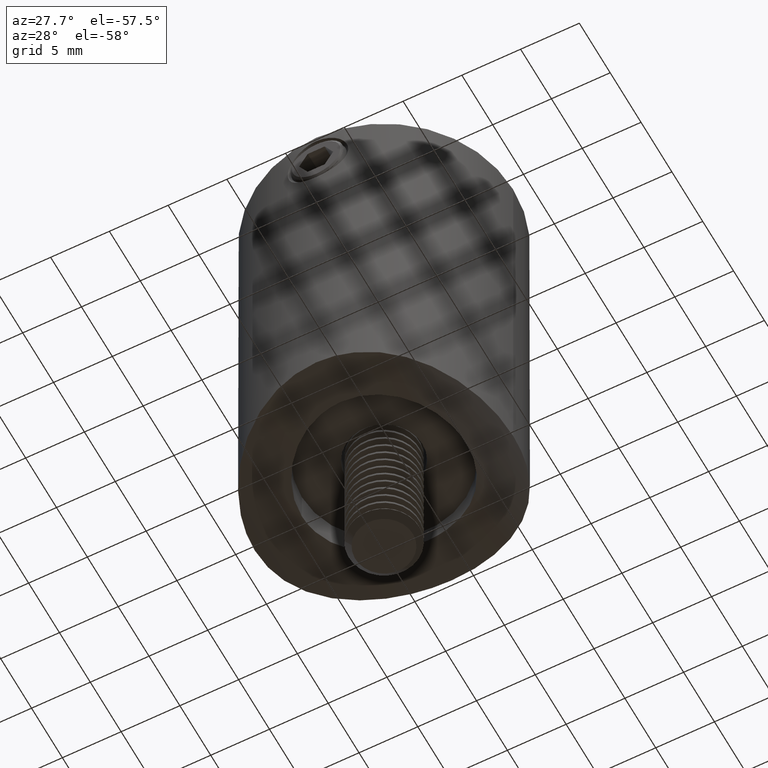
[diagram: clean part render]
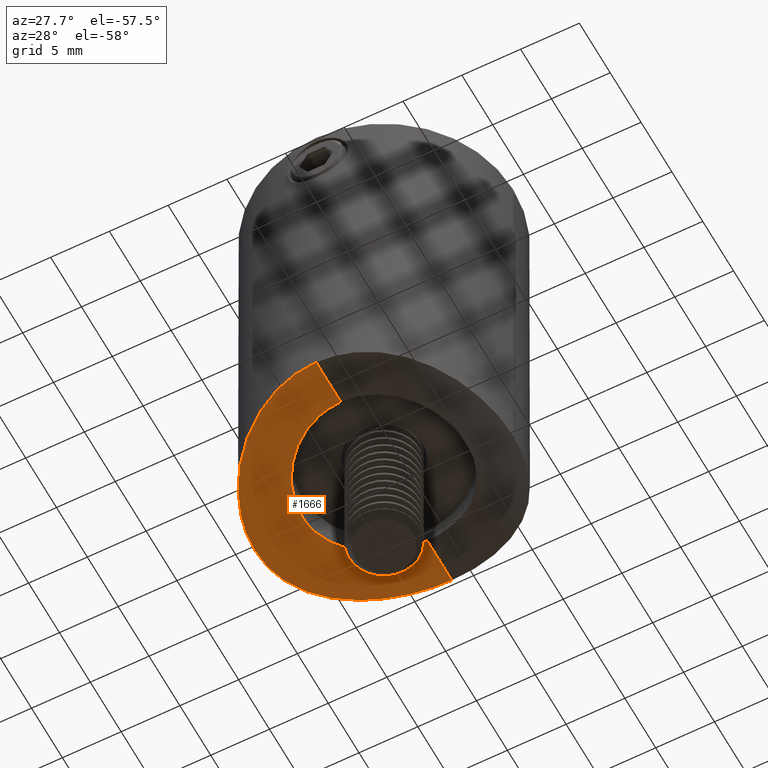
[diagram: same view with one face highlighted and labeled with its STEP entity id]
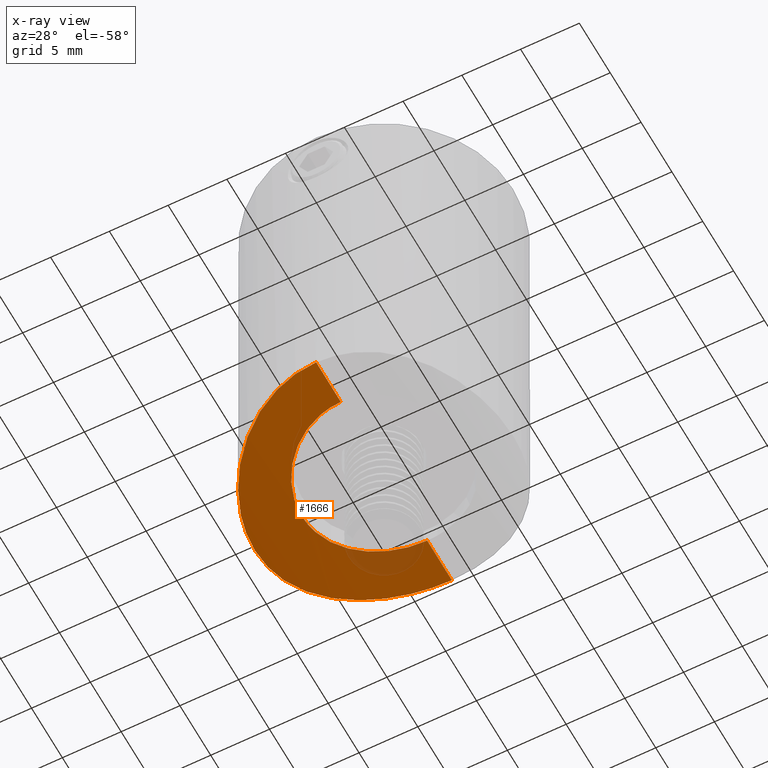
[diagram: x-ray of the same camera — body ghosted, the highlighted face saturated]
A machine part, auxiliary view. The second image highlights one B-rep face of the part: STEP entity #1666.
The next image is the same camera in x-ray: the body ghosted, the highlighted face saturated — about 8% of this face is hidden behind the body in this view.
In plain terms, the highlighted cylindrical surface (partial cylindrical patch) has radius 21.2 mm, axis along (0, 1, 0).
Its self-contained STEP definition (entity closure, byte-faithful):
#61 = CARTESIAN_POINT ( 'NONE',  ( -2.902241123111199084, -10.63519303795539805, -0.1873413325732195267 ) ) ;
#334 = CARTESIAN_POINT ( 'NONE',  ( -6.549707608988703633, 2.480681616731134742, -1.036917832098772418 ) ) ;
#373 = CARTESIAN_POINT ( 'NONE',  ( -6.999999999999999112, -2.621968049083548575E-16, -1.189003023337392939 ) ) ;
#392 = VERTEX_POINT ( 'NONE', #1781 ) ;
#426 = CARTESIAN_POINT ( 'NONE',  ( 1.225628972398258190E-13, 7.000000000001502798, 4.973675177510444196E-13 ) ) ;
#506 = CARTESIAN_POINT ( 'NONE',  ( -6.069757924312860986, -3.516592431719292922, -0.8857725263947305860 ) ) ;
#608 = VERTEX_POINT ( 'NONE', #13135 ) ;
#727 = CARTESIAN_POINT ( 'NONE',  ( -5.549761913631879651, 9.504206566031315973, -0.7366893261765361522 ) ) ;
#859 = EDGE_CURVE ( 'NONE', #392, #8025, #19038, .T. ) ;
#1018 = VECTOR ( 'NONE', #6494, 1000.000000000000000 ) ;
#1027 = EDGE_CURVE ( 'NONE', #18138, #8025, #18565, .T. ) ;
#1628 = CARTESIAN_POINT ( 'NONE',  ( -3.596189103304733958, -10.42094924135898992, -0.2960386154706161621 ) ) ;
#1666 = ADVANCED_FACE ( 'NONE', ( #13847 ), #2474, .F. ) ;
#1781 = CARTESIAN_POINT ( 'NONE',  ( -5.327213389923195931E-16, -10.99999999999999645, -1.146056980037272180E-15 ) ) ;
#1789 = CARTESIAN_POINT ( 'NONE',  ( -5.564252761578065254, 4.271566623904684334, -0.7415444747053617780 ) ) ;
#1954 = CARTESIAN_POINT ( 'NONE',  ( -5.688668117734375862, -4.085480503431443644, -0.7770593492622396292 ) ) ;
#2025 = CARTESIAN_POINT ( 'NONE',  ( -5.260839017932542383, -4.623392061158397404, -0.6625683936234562088 ) ) ;
#2068 = ORIENTED_EDGE ( 'NONE', *, *, #1027, .T. ) ;
#2084 = CARTESIAN_POINT ( 'NONE',  ( -5.108058787468032769, -4.791565503638304691, -0.6239236197253086313 ) ) ;
#2088 = CARTESIAN_POINT ( 'NONE',  ( -10.99999999999999645, -0.7291762586134027391, -3.077086326972692465 ) ) ;
#2165 = CARTESIAN_POINT ( 'NONE',  ( -9.327623629971713015, 5.841274094046155163, -2.161008731498128554 ) ) ;
#2275 = ORIENTED_EDGE ( 'NONE', *, *, #859, .F. ) ;
#2296 = CARTESIAN_POINT ( 'NONE',  ( -4.915962326399839988, 9.846985028586628275, -0.5752513848814696518 ) ) ;
#2474 = CYLINDRICAL_SURFACE ( 'NONE', #8434, 21.19999999999999929 ) ;
#3219 = CARTESIAN_POINT ( 'NONE',  ( -6.070581554644750355, 3.515000683583511698, -0.8860306472714499781 ) ) ;
#3427 = CARTESIAN_POINT ( 'NONE',  ( -6.818993920813481324, 1.598082828750264195, -1.126545358740824287 ) ) ;
#3536 = CARTESIAN_POINT ( 'NONE',  ( -5.551077185283673998, -4.270564764385034628, -0.7391088600173929546 ) ) ;
#3541 = CARTESIAN_POINT ( 'NONE',  ( -10.63630407023814861, -2.900044636221515759, -2.860488506123356700 ) ) ;
#3668 = CARTESIAN_POINT ( 'NONE',  ( -3.109540433735531462, -6.287967465322433114, -0.2249963781626745929 ) ) ;
#3741 = CARTESIAN_POINT ( 'NONE',  ( -9.333800312115258180, -5.831523056905377977, -2.164024512717362736 ) ) ;
#3923 = CARTESIAN_POINT ( 'NONE',  ( -5.327213576290984270E-16, -11.00016580597407945, -21.19999999999999929 ) ) ;
#3948 = CARTESIAN_POINT ( 'NONE',  ( -3.601447740074377624, 10.41840057596099456, -0.2972642184565139623 ) ) ;
#4555 = ORIENTED_EDGE ( 'NONE', *, *, #14744, .T. ) ;
#4571 = EDGE_CURVE ( 'NONE', #13715, #608, #15933, .T. ) ;
#4712 = CARTESIAN_POINT ( 'NONE',  ( -5.327213576290984270E-16, -11.00016580597407945, 0.000000000000000000 ) ) ;
#4939 = CARTESIAN_POINT ( 'NONE',  ( -6.953910075002655233, 0.9237542678262833373, -1.172714313319938251 ) ) ;
#5038 = CARTESIAN_POINT ( 'NONE',  ( -6.953898511183028042, -0.9238987657836603695, -1.172710100824252200 ) ) ;
#5040 = CARTESIAN_POINT ( 'NONE',  ( -9.519549202992447334, -5.523170586369965385, -2.256551381099451525 ) ) ;
#5109 = CARTESIAN_POINT ( 'NONE',  ( -10.01051534637975848, -4.573467492044350102, -2.511658218181100022 ) ) ;
#5174 = CARTESIAN_POINT ( 'NONE',  ( -7.296896712588858414, -8.261556136961436536, -1.288144367387087597 ) ) ;
#5243 = EDGE_CURVE ( 'NONE', #18566, #18138, #19224, .T. ) ;
#5312 = CARTESIAN_POINT ( 'NONE',  ( -9.857370888176129498, -4.894841113588290327, -2.430122488996978802 ) ) ;
#5323 = CARTESIAN_POINT ( 'NONE',  ( -8.271453200055688626, 7.260091902100241690, -1.678638669968163688 ) ) ;
#5380 = CARTESIAN_POINT ( 'NONE',  ( -0.4605050746028463982, -7.000000000000002665, 2.968850480126321900E-15 ) ) ;
#5445 = CARTESIAN_POINT ( 'NONE',  ( -1.596399821333795321, -6.819443552187294699, -0.05897392174351170913 ) ) ;
#5848 = ORIENTED_EDGE ( 'NONE', *, *, #5243, .T. ) ;
#6040 = CARTESIAN_POINT ( 'NONE',  ( -1.596508993016137801, 6.819409243295845968, -0.05898491504849563694 ) ) ;
#6182 = CARTESIAN_POINT ( 'NONE',  ( -3.111598469892457697, 6.287010019815117978, -0.2252864800283893576 ) ) ;
#6453 = CARTESIAN_POINT ( 'NONE',  ( -5.270573634410198771, 4.628917774211476655, -0.6629627499619922260 ) ) ;
#6494 = DIRECTION ( 'NONE',  ( -0.000000000000000000, 1.000000000000000000, -0.000000000000000000 ) ) ;
#6627 = CARTESIAN_POINT ( 'NONE',  ( -6.818923266335682243, -1.598392581983038463, -1.126521308198942029 ) ) ;
#6774 = CARTESIAN_POINT ( 'NONE',  ( -1.473140175474149105, 10.90714730409325206, -0.04805317692076038066 ) ) ;
#6976 = CARTESIAN_POINT ( 'NONE',  ( -9.510960417715804027, 5.537933664919425958, -2.252233752759261076 ) ) ;
#7027 = CARTESIAN_POINT ( 'NONE',  ( -1.822709779364241500, -6.762448904580941722, -0.07734257559336250865 ) ) ;
#7040 = CARTESIAN_POINT ( 'NONE',  ( -10.63650719179218385, 2.897631700715725511, -2.860617406734316415 ) ) ;
#7051 = ORIENTED_EDGE ( 'NONE', *, *, #17637, .F. ) ;
#7107 = CARTESIAN_POINT ( 'NONE',  ( -5.327213598271221762E-16, -6.999999999999999112, 1.666791759375642716E-15 ) ) ;
#7208 = DIRECTION ( 'NONE',  ( -0.000000000000000000, 1.000000000000000000, -0.000000000000000000 ) ) ;
#7773 = CARTESIAN_POINT ( 'NONE',  ( -3.516292267065661115, 6.070117179547626307, -0.2900476510428313115 ) ) ;
#7882 = CARTESIAN_POINT ( 'NONE',  ( -1.469545096838126064, -10.90766147439153144, -0.04778795498794376206 ) ) ;
#8025 = VERTEX_POINT ( 'NONE', #7107 ) ;
#8217 = CARTESIAN_POINT ( 'NONE',  ( -6.628223578823718931, -2.262724182244174820, -1.062679243208450419 ) ) ;
#8354 = CARTESIAN_POINT ( 'NONE',  ( -6.762876291949825536, -1.821200921252310589, -1.107500420988794199 ) ) ;
#8356 = CARTESIAN_POINT ( 'NONE',  ( -10.42309951531381884, -3.587072078649859996, -2.736599968841172625 ) ) ;
#8434 = AXIS2_PLACEMENT_3D ( 'NONE', #3923, #7208, #19795 ) ;
#8581 = CARTESIAN_POINT ( 'NONE',  ( -8.031619971637814714, 7.524487005331425671, -1.578452092155183450 ) ) ;
#9450 = CARTESIAN_POINT ( 'NONE',  ( 1.225628972398258190E-13, 7.000000000001502798, 4.973675177510444196E-13 ) ) ;
#9551 = CARTESIAN_POINT ( 'NONE',  ( -5.564278925587888835, -9.515470146415150765, -0.7339802294926756066 ) ) ;
#9639 = CARTESIAN_POINT ( 'NONE',  ( -6.628393107060865042, 2.262219937089390509, -1.062735177933421538 ) ) ;
#9870 = CARTESIAN_POINT ( 'NONE',  ( -6.285053946833492944, -3.115796421667190508, -0.9522256001040754203 ) ) ;
#10024 = CARTESIAN_POINT ( 'NONE',  ( -10.42386209908589834, 3.586600879699340716, -2.736956029803303547 ) ) ;
#10156 = CARTESIAN_POINT ( 'NONE',  ( -5.856795318891037105, 9.317938581305178047, -0.8227447210148444157 ) ) ;
#10291 = CARTESIAN_POINT ( 'NONE',  ( -5.327213576290984270E-16, 10.99999999999999645, -9.025069878501192445E-16 ) ) ;
#10747 = CARTESIAN_POINT ( 'NONE',  ( -0.9180499056559024984, 6.954848520280366486, -0.01503779756878726066 ) ) ;
#11018 = CARTESIAN_POINT ( 'NONE',  ( -10.99999999999999645, 3.193579555179582804E-18, -3.077086326972692909 ) ) ;
#11070 = CARTESIAN_POINT ( 'NONE',  ( -1.831718999945758597, -10.85252915812949226, -0.07623346896076059476 ) ) ;
#11094 = CARTESIAN_POINT ( 'NONE',  ( -6.999999999999997335, 0.4659799063984123024, -1.189003023337391607 ) ) ;
#11617 = CARTESIAN_POINT ( 'NONE',  ( -9.849565231484442407, 4.910513424799647808, -2.426021237410407760 ) ) ;
#11808 = CARTESIAN_POINT ( 'NONE',  ( -10.00550077941368698, 4.584768902126573842, -2.508954615118605513 ) ) ;
#11945 = CARTESIAN_POINT ( 'NONE',  ( -6.999999999999999112, -2.621968049083548575E-16, -1.189003023337392939 ) ) ;
#12412 = CARTESIAN_POINT ( 'NONE',  ( -2.263648735176774895, 6.627898305826574799, -0.1200340517762208958 ) ) ;
#12429 = ORIENTED_EDGE ( 'NONE', *, *, #4571, .T. ) ;
#12612 = CARTESIAN_POINT ( 'NONE',  ( -4.278747599975813998, 5.559042440615667324, -0.4326521308380259501 ) ) ;
#12656 = CARTESIAN_POINT ( 'NONE',  ( -0.3655993611877280114, -10.99999999999999822, -6.527800580173134049E-16 ) ) ;
#12681 = CARTESIAN_POINT ( 'NONE',  ( -4.628975734345868176, 5.270522729956486074, -0.5089045941007325213 ) ) ;
#12742 = VECTOR ( 'NONE', #16487, 1000.000000000000000 ) ;
#13047 = CARTESIAN_POINT ( 'NONE',  ( -4.627092852526208056, -5.272140925814184698, -0.5084861146746786353 ) ) ;
#13110 = CARTESIAN_POINT ( 'NONE',  ( -3.511685228097967570, -6.072878628046489702, -0.2892511066595556124 ) ) ;
#13135 = CARTESIAN_POINT ( 'NONE',  ( -5.327213576290984270E-16, 10.99999999999999645, -9.025069878501192445E-16 ) ) ;
#13179 = CARTESIAN_POINT ( 'NONE',  ( -7.000000000000000000, -0.4662002295235364024, -1.189003023337392495 ) ) ;
#13182 = CARTESIAN_POINT ( 'NONE',  ( -6.742786449471402932, -8.720103380458528619, -1.091444703674929961 ) ) ;
#13190 = CARTESIAN_POINT ( 'NONE',  ( -8.933192425236907042, 6.428306053531620101, -1.972784283776625847 ) ) ;
#13397 = CARTESIAN_POINT ( 'NONE',  ( -4.592365084152458365, 10.00192766571899838, -0.5006309231843080187 ) ) ;
#13532 = CARTESIAN_POINT ( 'NONE',  ( -0.3696725908103661862, 10.99999999999999645, 2.065819243581317205E-17 ) ) ;
#13715 = VERTEX_POINT ( 'NONE', #11018 ) ;
#13847 = FACE_OUTER_BOUND ( 'NONE', #14505, .T. ) ;
#13969 = LINE ( 'NONE', #18017, #12742 ) ;
#14061 = CARTESIAN_POINT ( 'NONE',  ( -1.822676172940772332, 6.762469454070766162, -0.07733630568494215263 ) ) ;
#14243 = CARTESIAN_POINT ( 'NONE',  ( -4.936661217448648387, -9.856882630012727020, -0.5714384006843132857 ) ) ;
#14505 = EDGE_LOOP ( 'NONE', ( #2275, #4555, #12429, #7051, #5848, #2068 ) ) ;
#14650 = CARTESIAN_POINT ( 'NONE',  ( -4.276527186075488096, -5.560854538556331050, -0.4321722934646495817 ) ) ;
#14744 = EDGE_CURVE ( 'NONE', #392, #13715, #17850, .T. ) ;
#14795 = CARTESIAN_POINT ( 'NONE',  ( -8.292764469889004175, -7.261409566007267280, -1.681886520076915525 ) ) ;
#14934 = CARTESIAN_POINT ( 'NONE',  ( -7.282508670216236268, 8.274319531966193964, -1.282838702694905963 ) ) ;
#14992 = CARTESIAN_POINT ( 'NONE',  ( -2.263042761920027957, -6.628093510548818124, -0.1199723656169686403 ) ) ;
#15000 = CARTESIAN_POINT ( 'NONE',  ( -2.914203811307413350, 10.63211006109951207, -0.1889075858795409013 ) ) ;
#15665 = CARTESIAN_POINT ( 'NONE',  ( -2.479203503609697989, 6.550243124836099717, -0.1443899860780898936 ) ) ;
#15799 = CARTESIAN_POINT ( 'NONE',  ( -6.762973605274413380, 1.820830096373171392, -1.107533309468105021 ) ) ;
#15910 = CARTESIAN_POINT ( 'NONE',  ( -5.327213389923195931E-16, -10.99999999999999645, -1.146056980037272180E-15 ) ) ;
#15933 = B_SPLINE_CURVE_WITH_KNOTS ( 'NONE', 3,
 ( #17909, #16511, #16448, #18110, #19485, #7040, #10024, #11808, #11617, #6976, #2165, #13190, #18043, #5323, #8581, #14934, #19615, #10156, #727, #2296, #13397, #3948, #15000, #16252, #6774, #17836, #13532, #10291 ),
 .UNSPECIFIED., .F., .F.,
 ( 4, 2, 2, 2, 2, 2, 2, 2, 2, 2, 2, 2, 2, 4 ),
 ( 0.05254394209585565995, 0.05363595187947398785, 0.05472796166309232269, 0.05691198123032897849, 0.05800399101394731333, 0.05909600079756564817, 0.06018801058118398301, 0.06128002036480231784, 0.06346403993203898752, 0.06455604971565731542, 0.06564805949927564332, 0.06783207906651231300, 0.06892408885013064090, 0.07001609863374896880 ),
 .UNSPECIFIED. ) ;
#16252 = CARTESIAN_POINT ( 'NONE',  ( -1.839828858917519572, 10.85120347340271962, -0.07691601962366222123 ) ) ;
#16448 = CARTESIAN_POINT ( 'NONE',  ( -10.98197988738960262, 0.7286795565369896810, -3.066110822070716946 ) ) ;
#16487 = DIRECTION ( 'NONE',  ( -0.000000000000000000, 1.000000000000000000, -0.000000000000000000 ) ) ;
#16511 = CARTESIAN_POINT ( 'NONE',  ( -10.99999999999999645, 0.3639891504037596204, -3.077086326972692465 ) ) ;
#16708 = CARTESIAN_POINT ( 'NONE',  ( -0.9171726201023974179, -6.954998590152847271, -0.01498882442503316446 ) ) ;
#17174 = CARTESIAN_POINT ( 'NONE',  ( -0.4612724556698578060, 7.000000000000024869, 5.714648950809014795E-15 ) ) ;
#17353 = CARTESIAN_POINT ( 'NONE',  ( -0.7339613665599701298, -10.98170944543534056, -0.009508313840579651899 ) ) ;
#17383 = CARTESIAN_POINT ( 'NONE',  ( -6.999999999999999112, -2.621968049083548575E-16, -1.189003023337392939 ) ) ;
#17637 = EDGE_CURVE ( 'NONE', #18566, #608, #13969, .T. ) ;
#17754 = CARTESIAN_POINT ( 'NONE',  ( -10.99999999999999645, 3.193579555179582804E-18, -3.077086326972692909 ) ) ;
#17836 = CARTESIAN_POINT ( 'NONE',  ( -0.7393041797994003295, 10.98132203423229925, -0.009709164036962668332 ) ) ;
#17850 = B_SPLINE_CURVE_WITH_KNOTS ( 'NONE', 3,
 ( #15910, #12656, #17353, #7882, #11070, #61, #1628, #14243, #9551, #13182, #5174, #14795, #19267, #3741, #5040, #5312, #5109, #8356, #3541, #19340, #2088, #17754 ),
 .UNSPECIFIED., .F., .F.,
 ( 4, 2, 2, 2, 2, 2, 2, 2, 2, 2, 4 ),
 ( 0.03504303345602864661, 0.03613684024601783451, 0.03723064703600702241, 0.03941826061598539821, 0.04160587419596377401, 0.04379348777594214981, 0.04598110135592052561, 0.04707490814590971351, 0.04816871493589890141, 0.05035632851587727721, 0.05254394209585565995 ),
 .UNSPECIFIED. ) ;
#17909 = CARTESIAN_POINT ( 'NONE',  ( -10.99999999999999645, 3.193579555179582804E-18, -3.077086326972692909 ) ) ;
#18017 = CARTESIAN_POINT ( 'NONE',  ( -5.327213576290984270E-16, -11.00016580597407945, 0.000000000000000000 ) ) ;
#18043 = CARTESIAN_POINT ( 'NONE',  ( -8.722097608522574319, 6.711995662622097569, -1.875779458778198183 ) ) ;
#18100 = CARTESIAN_POINT ( 'NONE',  ( -5.327213598271221762E-16, -6.999999999999999112, 1.666791759375642716E-15 ) ) ;
#18110 = CARTESIAN_POINT ( 'NONE',  ( -10.90892921239843183, 1.459492919484273177, -3.022071559076634717 ) ) ;
#18138 = VERTEX_POINT ( 'NONE', #11945 ) ;
#18565 = B_SPLINE_CURVE_WITH_KNOTS ( 'NONE', 3,
 ( #373, #13179, #5038, #6627, #8354, #8217, #19263, #9870, #506, #1954, #3536, #2025, #2084, #13047, #14650, #13110, #3668, #19741, #14992, #7027, #5445, #16708, #5380, #18100 ),
 .UNSPECIFIED., .F., .F.,
 ( 4, 2, 2, 2, 2, 2, 2, 2, 2, 2, 2, 4 ),
 ( 2.074370954521769873E-19, 0.001377923937023655581, 0.002066885905535483046, 0.002755847874047311595, 0.004133771811070967826, 0.004822733779582795074, 0.005511695748094623190, 0.006889619685118275952, 0.008267543622141926979, 0.008956505590653753360, 0.009645467559165576271, 0.01102339149618922383 ),
 .UNSPECIFIED. ) ;
#18566 = VERTEX_POINT ( 'NONE', #426 ) ;
#19038 = LINE ( 'NONE', #4712, #1018 ) ;
#19224 = B_SPLINE_CURVE_WITH_KNOTS ( 'NONE', 3,
 ( #9450, #17174, #10747, #6040, #14061, #12412, #15665, #6182, #7773, #12612, #12681, #6453, #1789, #3219, #19226, #334, #9639, #15799, #3427, #4939, #11094, #17383 ),
 .UNSPECIFIED., .F., .F.,
 ( 4, 2, 2, 2, 2, 2, 2, 2, 2, 2, 4 ),
 ( 0.03305684844175335590, 0.03443412118109678149, 0.03512275755076849082, 0.03581139392044020014, 0.03718866665978362573, 0.03856593939912704438, 0.03994321213847046997, 0.04132048487781388862, 0.04200912124748559795, 0.04269775761715731421, 0.04407503035650073286 ),
 .UNSPECIFIED. ) ;
#19226 = CARTESIAN_POINT ( 'NONE',  ( -6.285472950323998553, 3.114905131472629929, -0.9523572018402738371 ) ) ;
#19263 = CARTESIAN_POINT ( 'NONE',  ( -6.549529692872770426, -2.481165737339659394, -1.036859653860962460 ) ) ;
#19267 = CARTESIAN_POINT ( 'NONE',  ( -8.739512979453566643, -6.717653652921582896, -1.880225752938109895 ) ) ;
#19340 = CARTESIAN_POINT ( 'NONE',  ( -10.92775905948572657, -1.457842619924895278, -3.032646641669959120 ) ) ;
#19485 = CARTESIAN_POINT ( 'NONE',  ( -10.85354599617497939, 1.825767780256815520, -2.988805665340895867 ) ) ;
#19615 = CARTESIAN_POINT ( 'NONE',  ( -6.739741428634357767, 8.722385495068884609, -1.090444512013714728 ) ) ;
#19741 = CARTESIAN_POINT ( 'NONE',  ( -2.478250430666408377, -6.550589205666855541, -0.1442815495603886056 ) ) ;
#19795 = DIRECTION ( 'NONE',  ( 0.000000000000000000, 0.000000000000000000, 1.000000000000000000 ) ) ;